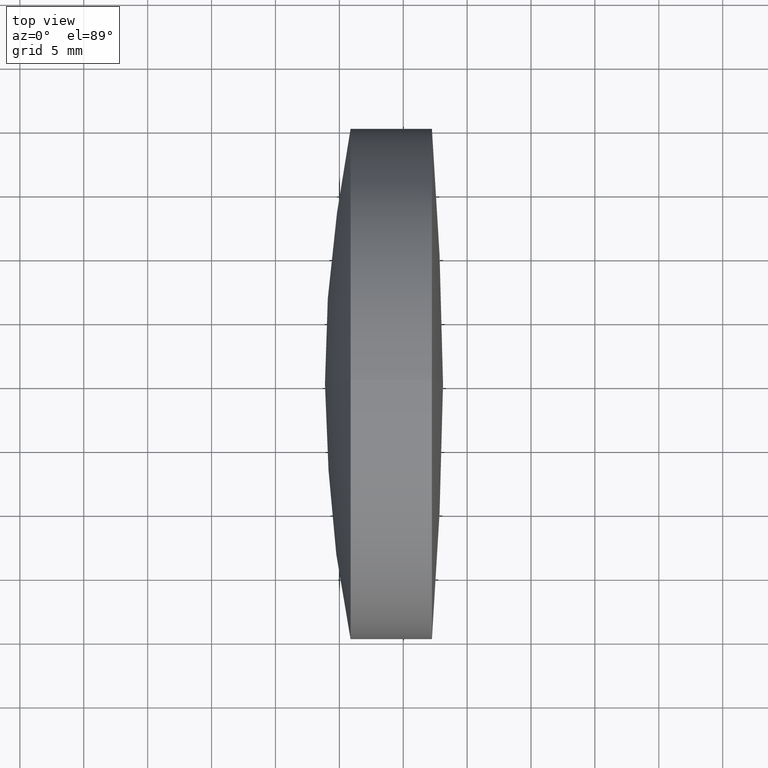
[diagram: clean part render]
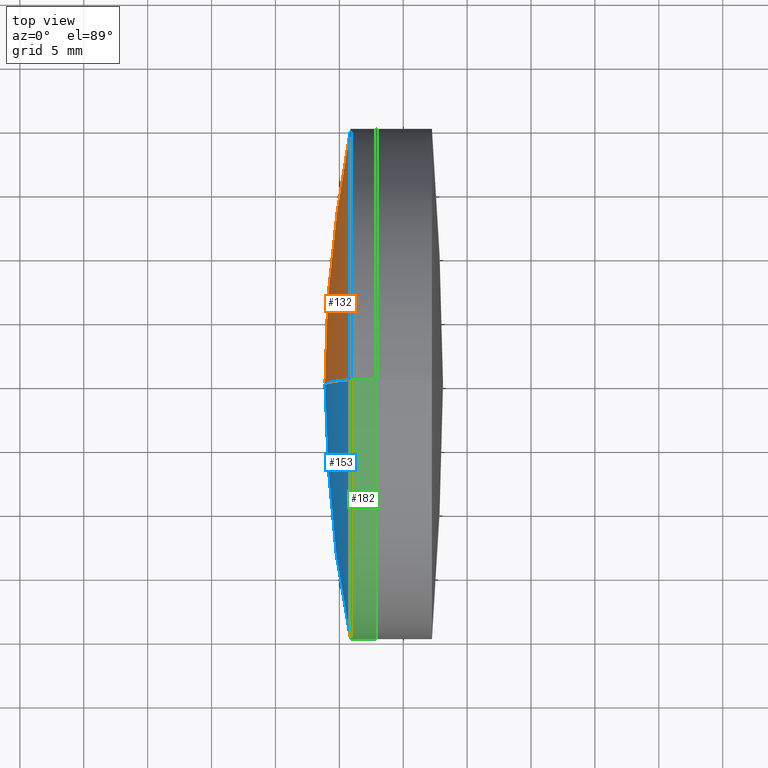
[diagram: same view with three faces highlighted in distinct colors, each labeled with its STEP entity id]
A machine part, top view with three faces highlighted in distinct colors.
Their STEP definitions:

[orange] entity #132 — the highlighted spherical surface has radius 100.809 mm.
#4 = ORIENTED_EDGE ( 'NONE', *, *, #201, .F. ) ;
#16 = AXIS2_PLACEMENT_3D ( 'NONE', #333, #305, #60 ) ;
#20 = VERTEX_POINT ( 'NONE', #186 ) ;
#26 = CARTESIAN_POINT ( 'NONE',  ( 280.8783964741982100, 0.0000000000000000000, 0.0000000000000000000 ) ) ;
#33 = CARTESIAN_POINT ( 'NONE',  ( 278.8745303539719200, 0.0000000000000000000, 2.885359799311880900E-016 ) ) ;
#57 = DIRECTION ( 'NONE',  ( 0.0000000000000000000, -1.000000000000000000, -1.224646799147353200E-016 ) ) ;
#58 = AXIS2_PLACEMENT_3D ( 'NONE', #26, #187, #346 ) ;
#60 = DIRECTION ( 'NONE',  ( 0.0000000000000000000, 0.0000000000000000000, -1.000000000000000000 ) ) ;
#121 = DIRECTION ( 'NONE',  ( 0.0000000000000000000, 0.0000000000000000000, 1.000000000000000000 ) ) ;
#132 = ADVANCED_FACE ( 'NONE', ( #168 ), #171, .T. ) ;
#143 = CARTESIAN_POINT ( 'NONE',  ( 379.6835303539718300, 0.0000000000000000000, 6.461306938693461600E-015 ) ) ;
#147 = ORIENTED_EDGE ( 'NONE', *, *, #331, .T. ) ;
#168 = FACE_OUTER_BOUND ( 'NONE', #205, .T. ) ;
#171 = SPHERICAL_SURFACE ( 'NONE', #16, 100.8089999999999500 ) ;
#179 = CIRCLE ( 'NONE', #58, 20.00000000000000700 ) ;
#183 = CIRCLE ( 'NONE', #340, 100.8089999999999500 ) ;
#186 = CARTESIAN_POINT ( 'NONE',  ( 280.8783964741982100, -2.449293598294705300E-015, 19.99999999999999600 ) ) ;
#187 = DIRECTION ( 'NONE',  ( -1.000000000000000000, -0.0000000000000000000, -0.0000000000000000000 ) ) ;
#188 = EDGE_CURVE ( 'NONE', #214, #220, #226, .T. ) ;
#193 = AXIS2_PLACEMENT_3D ( 'NONE', #143, #302, #121 ) ;
#201 = EDGE_CURVE ( 'NONE', #20, #220, #183, .T. ) ;
#205 = EDGE_LOOP ( 'NONE', ( #4, #147, #267 ) ) ;
#214 = VERTEX_POINT ( 'NONE', #326 ) ;
#220 = VERTEX_POINT ( 'NONE', #33 ) ;
#223 = DIRECTION ( 'NONE',  ( 0.0000000000000000000, 1.224646799147353200E-016, -1.000000000000000000 ) ) ;
#226 = CIRCLE ( 'NONE', #193, 100.8089999999999500 ) ;
#256 = CARTESIAN_POINT ( 'NONE',  ( 379.6835303539718300, 0.0000000000000000000, 6.461306938693461600E-015 ) ) ;
#267 = ORIENTED_EDGE ( 'NONE', *, *, #188, .T. ) ;
#302 = DIRECTION ( 'NONE',  ( 0.0000000000000000000, 1.000000000000000000, -0.0000000000000000000 ) ) ;
#305 = DIRECTION ( 'NONE',  ( -0.0000000000000000000, -1.000000000000000000, -0.0000000000000000000 ) ) ;
#326 = CARTESIAN_POINT ( 'NONE',  ( 280.8783964741982100, 0.0000000000000000000, -19.99999999999998900 ) ) ;
#331 = EDGE_CURVE ( 'NONE', #20, #214, #179, .T. ) ;
#333 = CARTESIAN_POINT ( 'NONE',  ( 379.6835303539718300, 0.0000000000000000000, 6.461306938693461600E-015 ) ) ;
#340 = AXIS2_PLACEMENT_3D ( 'NONE', #256, #57, #223 ) ;
#346 = DIRECTION ( 'NONE',  ( 0.0000000000000000000, 0.0000000000000000000, 1.000000000000000000 ) ) ;

[blue] entity #153 — the highlighted spherical surface has radius 100.809 mm.
#19 = ORIENTED_EDGE ( 'NONE', *, *, #310, .T. ) ;
#20 = VERTEX_POINT ( 'NONE', #186 ) ;
#33 = CARTESIAN_POINT ( 'NONE',  ( 278.8745303539719200, 0.0000000000000000000, 2.885359799311880900E-016 ) ) ;
#57 = DIRECTION ( 'NONE',  ( 0.0000000000000000000, -1.000000000000000000, -1.224646799147353200E-016 ) ) ;
#70 = AXIS2_PLACEMENT_3D ( 'NONE', #275, #82, #249 ) ;
#82 = DIRECTION ( 'NONE',  ( -1.000000000000000000, -0.0000000000000000000, -0.0000000000000000000 ) ) ;
#110 = SPHERICAL_SURFACE ( 'NONE', #300, 100.8089999999999500 ) ;
#121 = DIRECTION ( 'NONE',  ( 0.0000000000000000000, 0.0000000000000000000, 1.000000000000000000 ) ) ;
#122 = CARTESIAN_POINT ( 'NONE',  ( 379.6835303539718300, 0.0000000000000000000, 6.461306938693461600E-015 ) ) ;
#130 = ORIENTED_EDGE ( 'NONE', *, *, #201, .T. ) ;
#143 = CARTESIAN_POINT ( 'NONE',  ( 379.6835303539718300, 0.0000000000000000000, 6.461306938693461600E-015 ) ) ;
#153 = ADVANCED_FACE ( 'NONE', ( #167 ), #110, .T. ) ;
#163 = CIRCLE ( 'NONE', #70, 20.00000000000000700 ) ;
#167 = FACE_OUTER_BOUND ( 'NONE', #316, .T. ) ;
#170 = DIRECTION ( 'NONE',  ( -0.0000000000000000000, -1.000000000000000000, -0.0000000000000000000 ) ) ;
#183 = CIRCLE ( 'NONE', #340, 100.8089999999999500 ) ;
#186 = CARTESIAN_POINT ( 'NONE',  ( 280.8783964741982100, -2.449293598294705300E-015, 19.99999999999999600 ) ) ;
#188 = EDGE_CURVE ( 'NONE', #214, #220, #226, .T. ) ;
#193 = AXIS2_PLACEMENT_3D ( 'NONE', #143, #302, #121 ) ;
#201 = EDGE_CURVE ( 'NONE', #20, #220, #183, .T. ) ;
#208 = ORIENTED_EDGE ( 'NONE', *, *, #188, .F. ) ;
#214 = VERTEX_POINT ( 'NONE', #326 ) ;
#220 = VERTEX_POINT ( 'NONE', #33 ) ;
#223 = DIRECTION ( 'NONE',  ( 0.0000000000000000000, 1.224646799147353200E-016, -1.000000000000000000 ) ) ;
#226 = CIRCLE ( 'NONE', #193, 100.8089999999999500 ) ;
#227 = DIRECTION ( 'NONE',  ( 0.0000000000000000000, 0.0000000000000000000, -1.000000000000000000 ) ) ;
#249 = DIRECTION ( 'NONE',  ( 0.0000000000000000000, 0.0000000000000000000, 1.000000000000000000 ) ) ;
#256 = CARTESIAN_POINT ( 'NONE',  ( 379.6835303539718300, 0.0000000000000000000, 6.461306938693461600E-015 ) ) ;
#275 = CARTESIAN_POINT ( 'NONE',  ( 280.8783964741982100, 0.0000000000000000000, 0.0000000000000000000 ) ) ;
#300 = AXIS2_PLACEMENT_3D ( 'NONE', #122, #170, #227 ) ;
#302 = DIRECTION ( 'NONE',  ( 0.0000000000000000000, 1.000000000000000000, -0.0000000000000000000 ) ) ;
#310 = EDGE_CURVE ( 'NONE', #214, #20, #163, .T. ) ;
#316 = EDGE_LOOP ( 'NONE', ( #19, #130, #208 ) ) ;
#326 = CARTESIAN_POINT ( 'NONE',  ( 280.8783964741982100, 0.0000000000000000000, -19.99999999999998900 ) ) ;
#340 = AXIS2_PLACEMENT_3D ( 'NONE', #256, #57, #223 ) ;

[green] entity #182 — the highlighted cylindrical surface (partial cylindrical patch) has radius 20 mm, axis along (-1, -0, -0).
#5 = EDGE_CURVE ( 'NONE', #336, #140, #345, .T. ) ;
#20 = VERTEX_POINT ( 'NONE', #186 ) ;
#24 = CARTESIAN_POINT ( 'NONE',  ( 282.9165680011502700, 0.0000000000000000000, 0.0000000000000000000 ) ) ;
#35 = CARTESIAN_POINT ( 'NONE',  ( 282.9165680011502700, 0.0000000000000000000, 20.00000000000000700 ) ) ;
#42 = AXIS2_PLACEMENT_3D ( 'NONE', #257, #225, #329 ) ;
#47 = DIRECTION ( 'NONE',  ( 0.0000000000000000000, 0.0000000000000000000, 1.000000000000000000 ) ) ;
#50 = CARTESIAN_POINT ( 'NONE',  ( 282.9165680011502700, 2.449293598294707300E-015, -20.00000000000000700 ) ) ;
#56 = CARTESIAN_POINT ( 'NONE',  ( 124.5233095260452400, 2.449293598294707300E-015, -20.00000000000000700 ) ) ;
#70 = AXIS2_PLACEMENT_3D ( 'NONE', #275, #82, #249 ) ;
#82 = DIRECTION ( 'NONE',  ( -1.000000000000000000, -0.0000000000000000000, -0.0000000000000000000 ) ) ;
#85 = FACE_OUTER_BOUND ( 'NONE', #338, .T. ) ;
#90 = AXIS2_PLACEMENT_3D ( 'NONE', #24, #246, #47 ) ;
#114 = ORIENTED_EDGE ( 'NONE', *, *, #335, .T. ) ;
#120 = CYLINDRICAL_SURFACE ( 'NONE', #42, 20.00000000000000700 ) ;
#134 = ORIENTED_EDGE ( 'NONE', *, *, #310, .F. ) ;
#137 = CARTESIAN_POINT ( 'NONE',  ( 124.5233095260452400, 0.0000000000000000000, 20.00000000000000700 ) ) ;
#140 = VERTEX_POINT ( 'NONE', #35 ) ;
#163 = CIRCLE ( 'NONE', #70, 20.00000000000000700 ) ;
#182 = ADVANCED_FACE ( 'NONE', ( #85 ), #120, .T. ) ;
#186 = CARTESIAN_POINT ( 'NONE',  ( 280.8783964741982100, -2.449293598294705300E-015, 19.99999999999999600 ) ) ;
#194 = ORIENTED_EDGE ( 'NONE', *, *, #258, .F. ) ;
#195 = DIRECTION ( 'NONE',  ( -1.000000000000000000, -0.0000000000000000000, -0.0000000000000000000 ) ) ;
#211 = LINE ( 'NONE', #56, #233 ) ;
#214 = VERTEX_POINT ( 'NONE', #326 ) ;
#225 = DIRECTION ( 'NONE',  ( -1.000000000000000000, -0.0000000000000000000, -0.0000000000000000000 ) ) ;
#233 = VECTOR ( 'NONE', #195, 1000.000000000000000 ) ;
#235 = VECTOR ( 'NONE', #295, 1000.000000000000000 ) ;
#246 = DIRECTION ( 'NONE',  ( -1.000000000000000000, -0.0000000000000000000, -0.0000000000000000000 ) ) ;
#249 = DIRECTION ( 'NONE',  ( 0.0000000000000000000, 0.0000000000000000000, 1.000000000000000000 ) ) ;
#257 = CARTESIAN_POINT ( 'NONE',  ( 124.5233095260452400, 0.0000000000000000000, 0.0000000000000000000 ) ) ;
#258 = EDGE_CURVE ( 'NONE', #336, #214, #211, .T. ) ;
#266 = LINE ( 'NONE', #137, #235 ) ;
#275 = CARTESIAN_POINT ( 'NONE',  ( 280.8783964741982100, 0.0000000000000000000, 0.0000000000000000000 ) ) ;
#288 = ORIENTED_EDGE ( 'NONE', *, *, #5, .T. ) ;
#295 = DIRECTION ( 'NONE',  ( -1.000000000000000000, -0.0000000000000000000, -0.0000000000000000000 ) ) ;
#310 = EDGE_CURVE ( 'NONE', #214, #20, #163, .T. ) ;
#326 = CARTESIAN_POINT ( 'NONE',  ( 280.8783964741982100, 0.0000000000000000000, -19.99999999999998900 ) ) ;
#329 = DIRECTION ( 'NONE',  ( 0.0000000000000000000, 0.0000000000000000000, 1.000000000000000000 ) ) ;
#335 = EDGE_CURVE ( 'NONE', #140, #20, #266, .T. ) ;
#336 = VERTEX_POINT ( 'NONE', #50 ) ;
#338 = EDGE_LOOP ( 'NONE', ( #194, #288, #114, #134 ) ) ;
#345 = CIRCLE ( 'NONE', #90, 20.00000000000000700 ) ;